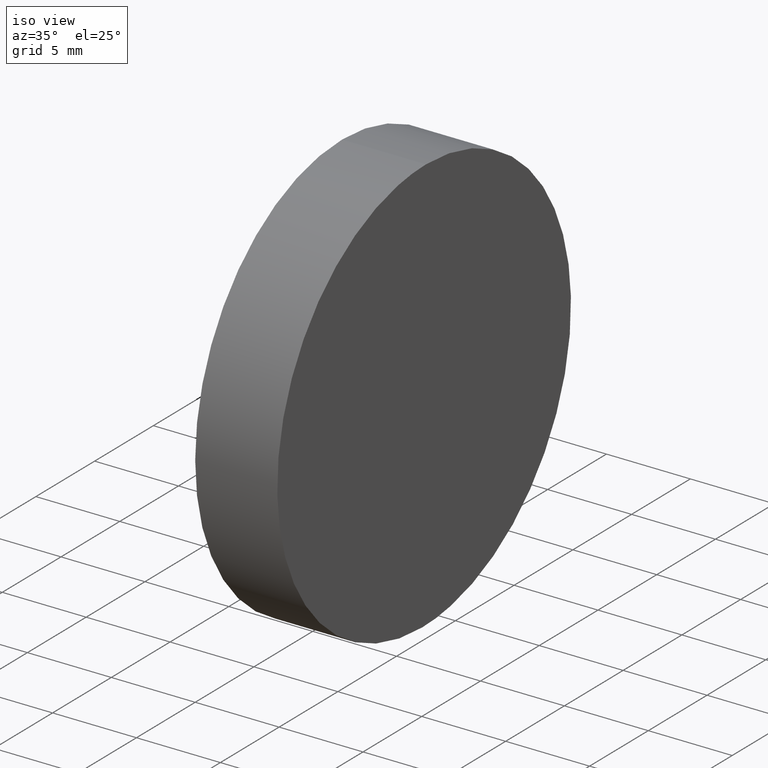
[diagram: clean part render]
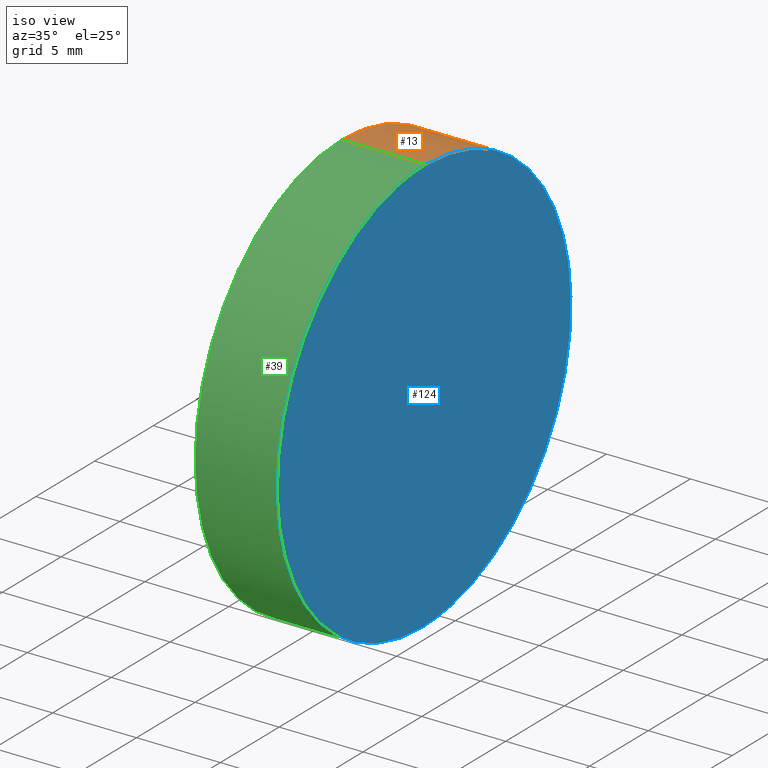
[diagram: same view with three faces highlighted in distinct colors, each labeled with its STEP entity id]
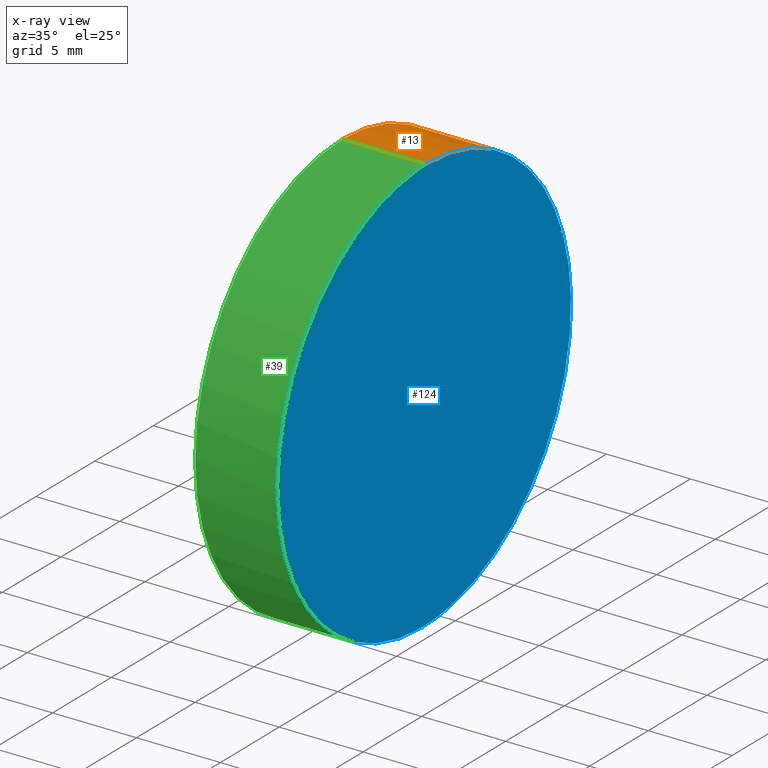
[diagram: x-ray of the same camera — body ghosted, the three highlighted faces saturated]
A machine part, iso view with three faces highlighted in distinct colors.
The next image is the same camera in x-ray (body ghosted, the three faces saturated) — at least one of them is partly hidden behind the body in this view.
Their STEP definitions:

[orange] entity #13 — the highlighted cylindrical surface (partial cylindrical patch) has radius 12.5 mm, axis along (-1, -0, -0).
#5 = CARTESIAN_POINT ( 'NONE',  ( 0.0000000000000000000, 12.50000000000000000, 0.0000000000000000000 ) ) ;
#7 = LINE ( 'NONE', #45, #60 ) ;
#8 =( BOUNDED_CURVE ( )  B_SPLINE_CURVE ( 3, ( #23, #83, #33, #109 ),
 .UNSPECIFIED., .F., .T. ) 
 B_SPLINE_CURVE_WITH_KNOTS ( ( 4, 4 ),
 ( 3.141592653589793100, 6.283185307179586200 ),
 .UNSPECIFIED. ) 
 CURVE ( )  GEOMETRIC_REPRESENTATION_ITEM ( )  RATIONAL_B_SPLINE_CURVE ( ( 1.000000000000000000, 0.3333333333333333700, 0.3333333333333333700, 1.000000000000000000 ) ) 
 REPRESENTATION_ITEM ( '' )  );
#10 = CIRCLE ( 'NONE', #131, 12.50000000000000000 ) ;
#13 = ADVANCED_FACE ( 'NONE', ( #21 ), #47, .T. ) ;
#17 = DIRECTION ( 'NONE',  ( 0.0000000000000000000, 0.0000000000000000000, 1.000000000000000000 ) ) ;
#21 = FACE_OUTER_BOUND ( 'NONE', #118, .T. ) ;
#23 = CARTESIAN_POINT ( 'NONE',  ( 5.000000000000003600, 12.50000000000000000, 12.50000000000000000 ) ) ;
#29 = VERTEX_POINT ( 'NONE', #51 ) ;
#32 = ORIENTED_EDGE ( 'NONE', *, *, #102, .F. ) ;
#33 = CARTESIAN_POINT ( 'NONE',  ( 4.781828305231207400, 37.50000000000000000, -12.50000000000000000 ) ) ;
#34 = CARTESIAN_POINT ( 'NONE',  ( 0.0000000000000000000, 12.50000000000000000, 12.50000000000000000 ) ) ;
#36 = CARTESIAN_POINT ( 'NONE',  ( 4.781828305231207400, 12.50000000000000200, -12.50000000000000000 ) ) ;
#44 = DIRECTION ( 'NONE',  ( -1.000000000000000000, -0.0000000000000000000, -0.0000000000000000000 ) ) ;
#45 = CARTESIAN_POINT ( 'NONE',  ( 12.50000000000000000, 12.50000000000000200, -12.50000000000000000 ) ) ;
#47 = CYLINDRICAL_SURFACE ( 'NONE', #101, 12.50000000000000000 ) ;
#49 = VERTEX_POINT ( 'NONE', #34 ) ;
#50 = LINE ( 'NONE', #111, #91 ) ;
#51 = CARTESIAN_POINT ( 'NONE',  ( 0.0000000000000000000, 12.50000000000000200, -12.50000000000000000 ) ) ;
#58 = EDGE_CURVE ( 'NONE', #80, #114, #8, .T. ) ;
#60 = VECTOR ( 'NONE', #126, 1000.000000000000000 ) ;
#70 = CARTESIAN_POINT ( 'NONE',  ( 12.50000000000000000, 12.50000000000000000, 0.0000000000000000000 ) ) ;
#75 = DIRECTION ( 'NONE',  ( -1.000000000000000000, 0.0000000000000000000, 0.0000000000000000000 ) ) ;
#78 = ORIENTED_EDGE ( 'NONE', *, *, #58, .T. ) ;
#80 = VERTEX_POINT ( 'NONE', #110 ) ;
#83 = CARTESIAN_POINT ( 'NONE',  ( 5.000000000000003600, 37.50000000000000000, 12.50000000000000500 ) ) ;
#91 = VECTOR ( 'NONE', #44, 1000.000000000000000 ) ;
#96 = DIRECTION ( 'NONE',  ( -1.000000000000000000, -0.0000000000000000000, -0.0000000000000000000 ) ) ;
#101 = AXIS2_PLACEMENT_3D ( 'NONE', #70, #96, #136 ) ;
#102 = EDGE_CURVE ( 'NONE', #80, #49, #50, .T. ) ;
#108 = ORIENTED_EDGE ( 'NONE', *, *, #134, .T. ) ;
#109 = CARTESIAN_POINT ( 'NONE',  ( 4.781828305231207400, 12.50000000000000200, -12.50000000000000000 ) ) ;
#110 = CARTESIAN_POINT ( 'NONE',  ( 5.000000000000003600, 12.50000000000000000, 12.50000000000000000 ) ) ;
#111 = CARTESIAN_POINT ( 'NONE',  ( 12.50000000000000000, 12.50000000000000000, 12.50000000000000000 ) ) ;
#114 = VERTEX_POINT ( 'NONE', #36 ) ;
#117 = EDGE_CURVE ( 'NONE', #49, #29, #10, .T. ) ;
#118 = EDGE_LOOP ( 'NONE', ( #78, #108, #135, #32 ) ) ;
#126 = DIRECTION ( 'NONE',  ( -1.000000000000000000, -0.0000000000000000000, -0.0000000000000000000 ) ) ;
#131 = AXIS2_PLACEMENT_3D ( 'NONE', #5, #75, #17 ) ;
#134 = EDGE_CURVE ( 'NONE', #114, #29, #7, .T. ) ;
#135 = ORIENTED_EDGE ( 'NONE', *, *, #117, .F. ) ;
#136 = DIRECTION ( 'NONE',  ( 0.0000000000000000000, 0.0000000000000000000, 1.000000000000000000 ) ) ;

[blue] entity #124 — the highlighted planar face has unit normal (-1, 0, 0.0087).
#2 = ORIENTED_EDGE ( 'NONE', *, *, #58, .F. ) ;
#4 = FACE_OUTER_BOUND ( 'NONE', #73, .T. ) ;
#8 =( BOUNDED_CURVE ( )  B_SPLINE_CURVE ( 3, ( #23, #83, #33, #109 ),
 .UNSPECIFIED., .F., .T. ) 
 B_SPLINE_CURVE_WITH_KNOTS ( ( 4, 4 ),
 ( 3.141592653589793100, 6.283185307179586200 ),
 .UNSPECIFIED. ) 
 CURVE ( )  GEOMETRIC_REPRESENTATION_ITEM ( )  RATIONAL_B_SPLINE_CURVE ( ( 1.000000000000000000, 0.3333333333333333700, 0.3333333333333333700, 1.000000000000000000 ) ) 
 REPRESENTATION_ITEM ( '' )  );
#11 = CARTESIAN_POINT ( 'NONE',  ( 5.000000000000003600, 12.50000000000000000, 12.50000000000000000 ) ) ;
#15 = EDGE_CURVE ( 'NONE', #114, #80, #31, .T. ) ;
#23 = CARTESIAN_POINT ( 'NONE',  ( 5.000000000000003600, 12.50000000000000000, 12.50000000000000000 ) ) ;
#26 = PLANE ( 'NONE',  #129 ) ;
#27 = DIRECTION ( 'NONE',  ( 0.008726535498366981900, 0.0000000000000000000, 0.9999619230641713100 ) ) ;
#31 =( BOUNDED_CURVE ( )  B_SPLINE_CURVE ( 3, ( #123, #133, #64, #11 ),
 .UNSPECIFIED., .F., .F. ) 
 B_SPLINE_CURVE_WITH_KNOTS ( ( 4, 4 ),
 ( 0.0000000000000000000, 3.141592653589793100 ),
 .UNSPECIFIED. ) 
 CURVE ( )  GEOMETRIC_REPRESENTATION_ITEM ( )  RATIONAL_B_SPLINE_CURVE ( ( 1.000000000000000000, 0.3333333333333333700, 0.3333333333333333700, 1.000000000000000000 ) ) 
 REPRESENTATION_ITEM ( '' )  );
#33 = CARTESIAN_POINT ( 'NONE',  ( 4.781828305231207400, 37.50000000000000000, -12.50000000000000000 ) ) ;
#36 = CARTESIAN_POINT ( 'NONE',  ( 4.781828305231207400, 12.50000000000000200, -12.50000000000000000 ) ) ;
#54 = CARTESIAN_POINT ( 'NONE',  ( 5.000000000000003600, 25.00000000000000000, 12.50000000000000000 ) ) ;
#58 = EDGE_CURVE ( 'NONE', #80, #114, #8, .T. ) ;
#64 = CARTESIAN_POINT ( 'NONE',  ( 5.000000000000003600, -12.50000000000000500, 12.50000000000000000 ) ) ;
#73 = EDGE_LOOP ( 'NONE', ( #2, #116 ) ) ;
#80 = VERTEX_POINT ( 'NONE', #110 ) ;
#83 = CARTESIAN_POINT ( 'NONE',  ( 5.000000000000003600, 37.50000000000000000, 12.50000000000000500 ) ) ;
#89 = DIRECTION ( 'NONE',  ( -0.9999619230641714200, 0.0000000000000000000, 0.008726535498366983600 ) ) ;
#109 = CARTESIAN_POINT ( 'NONE',  ( 4.781828305231207400, 12.50000000000000200, -12.50000000000000000 ) ) ;
#110 = CARTESIAN_POINT ( 'NONE',  ( 5.000000000000003600, 12.50000000000000000, 12.50000000000000000 ) ) ;
#114 = VERTEX_POINT ( 'NONE', #36 ) ;
#116 = ORIENTED_EDGE ( 'NONE', *, *, #15, .F. ) ;
#123 = CARTESIAN_POINT ( 'NONE',  ( 4.781828305231207400, 12.50000000000000200, -12.50000000000000000 ) ) ;
#124 = ADVANCED_FACE ( 'NONE', ( #4 ), #26, .F. ) ;
#129 = AXIS2_PLACEMENT_3D ( 'NONE', #54, #89, #27 ) ;
#133 = CARTESIAN_POINT ( 'NONE',  ( 4.781828305231207400, -12.50000000000000500, -12.50000000000000000 ) ) ;

[green] entity #39 — the highlighted cylindrical surface (partial cylindrical patch) has radius 12.5 mm, axis along (-1, -0, -0).
#7 = LINE ( 'NONE', #45, #60 ) ;
#9 = AXIS2_PLACEMENT_3D ( 'NONE', #35, #85, #97 ) ;
#11 = CARTESIAN_POINT ( 'NONE',  ( 5.000000000000003600, 12.50000000000000000, 12.50000000000000000 ) ) ;
#15 = EDGE_CURVE ( 'NONE', #114, #80, #31, .T. ) ;
#20 = FACE_OUTER_BOUND ( 'NONE', #82, .T. ) ;
#24 = CIRCLE ( 'NONE', #9, 12.50000000000000000 ) ;
#29 = VERTEX_POINT ( 'NONE', #51 ) ;
#30 = ORIENTED_EDGE ( 'NONE', *, *, #102, .T. ) ;
#31 =( BOUNDED_CURVE ( )  B_SPLINE_CURVE ( 3, ( #123, #133, #64, #11 ),
 .UNSPECIFIED., .F., .F. ) 
 B_SPLINE_CURVE_WITH_KNOTS ( ( 4, 4 ),
 ( 0.0000000000000000000, 3.141592653589793100 ),
 .UNSPECIFIED. ) 
 CURVE ( )  GEOMETRIC_REPRESENTATION_ITEM ( )  RATIONAL_B_SPLINE_CURVE ( ( 1.000000000000000000, 0.3333333333333333700, 0.3333333333333333700, 1.000000000000000000 ) ) 
 REPRESENTATION_ITEM ( '' )  );
#34 = CARTESIAN_POINT ( 'NONE',  ( 0.0000000000000000000, 12.50000000000000000, 12.50000000000000000 ) ) ;
#35 = CARTESIAN_POINT ( 'NONE',  ( 0.0000000000000000000, 12.50000000000000000, 0.0000000000000000000 ) ) ;
#36 = CARTESIAN_POINT ( 'NONE',  ( 4.781828305231207400, 12.50000000000000200, -12.50000000000000000 ) ) ;
#39 = ADVANCED_FACE ( 'NONE', ( #20 ), #100, .T. ) ;
#41 = DIRECTION ( 'NONE',  ( 0.0000000000000000000, 0.0000000000000000000, 1.000000000000000000 ) ) ;
#44 = DIRECTION ( 'NONE',  ( -1.000000000000000000, -0.0000000000000000000, -0.0000000000000000000 ) ) ;
#45 = CARTESIAN_POINT ( 'NONE',  ( 12.50000000000000000, 12.50000000000000200, -12.50000000000000000 ) ) ;
#49 = VERTEX_POINT ( 'NONE', #34 ) ;
#50 = LINE ( 'NONE', #111, #91 ) ;
#51 = CARTESIAN_POINT ( 'NONE',  ( 0.0000000000000000000, 12.50000000000000200, -12.50000000000000000 ) ) ;
#56 = ORIENTED_EDGE ( 'NONE', *, *, #134, .F. ) ;
#59 = ORIENTED_EDGE ( 'NONE', *, *, #63, .F. ) ;
#60 = VECTOR ( 'NONE', #126, 1000.000000000000000 ) ;
#63 = EDGE_CURVE ( 'NONE', #29, #49, #24, .T. ) ;
#64 = CARTESIAN_POINT ( 'NONE',  ( 5.000000000000003600, -12.50000000000000500, 12.50000000000000000 ) ) ;
#80 = VERTEX_POINT ( 'NONE', #110 ) ;
#82 = EDGE_LOOP ( 'NONE', ( #56, #140, #30, #59 ) ) ;
#85 = DIRECTION ( 'NONE',  ( -1.000000000000000000, 0.0000000000000000000, 0.0000000000000000000 ) ) ;
#86 = DIRECTION ( 'NONE',  ( -1.000000000000000000, -0.0000000000000000000, -0.0000000000000000000 ) ) ;
#91 = VECTOR ( 'NONE', #44, 1000.000000000000000 ) ;
#97 = DIRECTION ( 'NONE',  ( 0.0000000000000000000, 0.0000000000000000000, 1.000000000000000000 ) ) ;
#100 = CYLINDRICAL_SURFACE ( 'NONE', #112, 12.50000000000000000 ) ;
#102 = EDGE_CURVE ( 'NONE', #80, #49, #50, .T. ) ;
#110 = CARTESIAN_POINT ( 'NONE',  ( 5.000000000000003600, 12.50000000000000000, 12.50000000000000000 ) ) ;
#111 = CARTESIAN_POINT ( 'NONE',  ( 12.50000000000000000, 12.50000000000000000, 12.50000000000000000 ) ) ;
#112 = AXIS2_PLACEMENT_3D ( 'NONE', #120, #86, #41 ) ;
#114 = VERTEX_POINT ( 'NONE', #36 ) ;
#120 = CARTESIAN_POINT ( 'NONE',  ( 12.50000000000000000, 12.50000000000000000, 0.0000000000000000000 ) ) ;
#123 = CARTESIAN_POINT ( 'NONE',  ( 4.781828305231207400, 12.50000000000000200, -12.50000000000000000 ) ) ;
#126 = DIRECTION ( 'NONE',  ( -1.000000000000000000, -0.0000000000000000000, -0.0000000000000000000 ) ) ;
#133 = CARTESIAN_POINT ( 'NONE',  ( 4.781828305231207400, -12.50000000000000500, -12.50000000000000000 ) ) ;
#134 = EDGE_CURVE ( 'NONE', #114, #29, #7, .T. ) ;
#140 = ORIENTED_EDGE ( 'NONE', *, *, #15, .T. ) ;